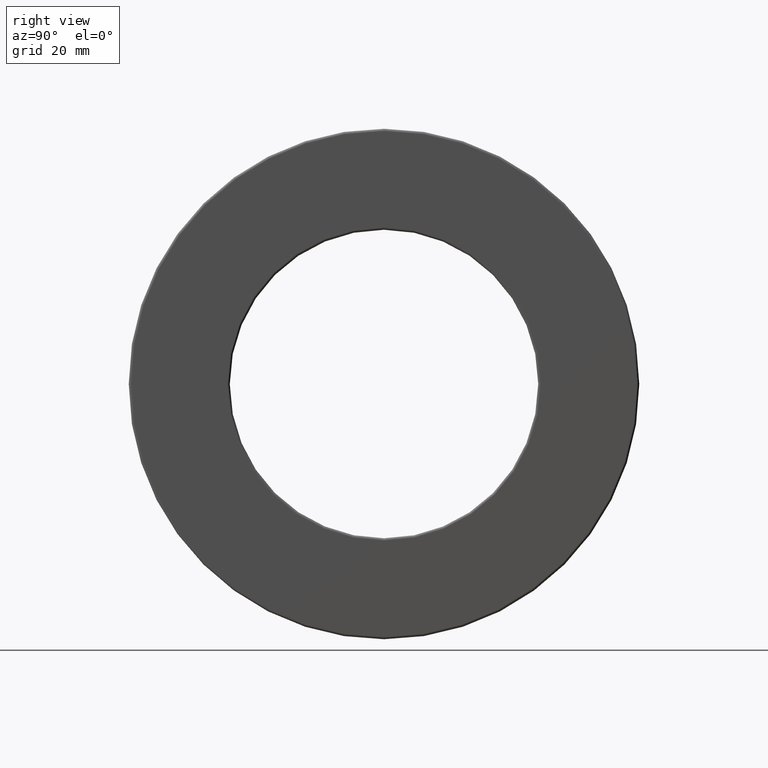
[diagram: clean part render]
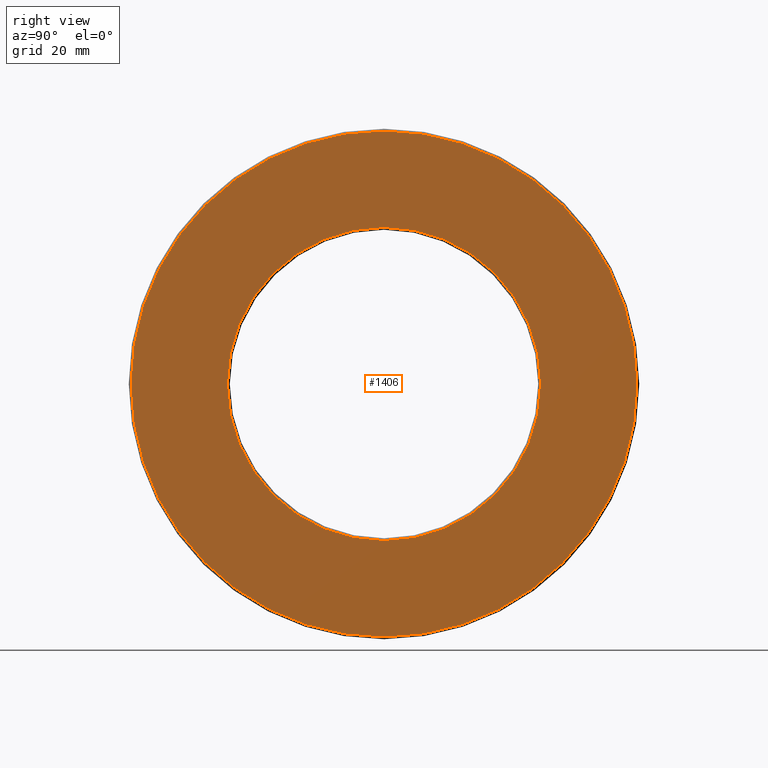
[diagram: same view with one face highlighted and labeled with its STEP entity id]
A machine part, right view. The second image highlights one B-rep face of the part: STEP entity #1406.
In plain terms, the highlighted planar face has unit normal (1, 0, 0).
Its self-contained STEP definition (entity closure, byte-faithful):
#88 = DIRECTION ( 'NONE',  ( 0.0000000000000000000, 0.0000000000000000000, 1.000000000000000000 ) ) ;
#212 = EDGE_CURVE ( 'NONE', #945, #945, #938, .T. ) ;
#226 = DIRECTION ( 'NONE',  ( -1.000000000000000000, -0.0000000000000000000, -0.0000000000000000000 ) ) ;
#306 = FACE_BOUND ( 'NONE', #495, .T. ) ;
#495 = EDGE_LOOP ( 'NONE', ( #1402 ) ) ;
#544 = CARTESIAN_POINT ( 'NONE',  ( 0.5000000000000000000, 0.0000000000000000000, 2.151875000000000000 ) ) ;
#604 = ORIENTED_EDGE ( 'NONE', *, *, #212, .F. ) ;
#637 = CARTESIAN_POINT ( 'NONE',  ( 0.5000000000000000000, -4.167578937702918500E-017, 0.0000000000000000000 ) ) ;
#641 = FACE_OUTER_BOUND ( 'NONE', #1255, .T. ) ;
#749 = PLANE ( 'NONE',  #825 ) ;
#794 = VERTEX_POINT ( 'NONE', #1392 ) ;
#825 = AXIS2_PLACEMENT_3D ( 'NONE', #637, #864, #1428 ) ;
#864 = DIRECTION ( 'NONE',  ( 1.000000000000000000, 0.0000000000000000000, 0.0000000000000000000 ) ) ;
#906 = AXIS2_PLACEMENT_3D ( 'NONE', #1222, #1332, #88 ) ;
#938 = CIRCLE ( 'NONE', #1294, 2.151875000000000000 ) ;
#945 = VERTEX_POINT ( 'NONE', #544 ) ;
#1217 = CARTESIAN_POINT ( 'NONE',  ( 0.5000000000000000000, 0.0000000000000000000, 0.0000000000000000000 ) ) ;
#1222 = CARTESIAN_POINT ( 'NONE',  ( 0.4999999999999999400, 0.0000000000000000000, 0.0000000000000000000 ) ) ;
#1255 = EDGE_LOOP ( 'NONE', ( #604 ) ) ;
#1294 = AXIS2_PLACEMENT_3D ( 'NONE', #1217, #226, #1353 ) ;
#1332 = DIRECTION ( 'NONE',  ( -1.000000000000000000, -0.0000000000000000000, -0.0000000000000000000 ) ) ;
#1353 = DIRECTION ( 'NONE',  ( 0.0000000000000000000, 0.0000000000000000000, 1.000000000000000000 ) ) ;
#1392 = CARTESIAN_POINT ( 'NONE',  ( 0.4999999999999999400, 0.0000000000000000000, 1.332500000000000000 ) ) ;
#1394 = CIRCLE ( 'NONE', #906, 1.332500000000000000 ) ;
#1402 = ORIENTED_EDGE ( 'NONE', *, *, #1429, .T. ) ;
#1406 = ADVANCED_FACE ( 'NONE', ( #306, #641 ), #749, .T. ) ;
#1428 = DIRECTION ( 'NONE',  ( 0.0000000000000000000, 0.0000000000000000000, -1.000000000000000000 ) ) ;
#1429 = EDGE_CURVE ( 'NONE', #794, #794, #1394, .T. ) ;